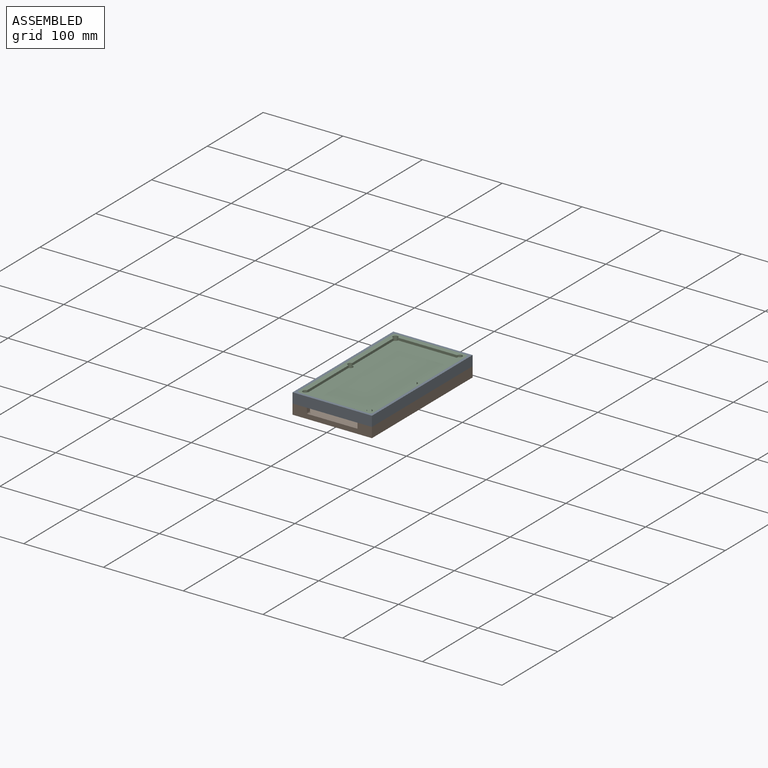
[diagram: assembled view]
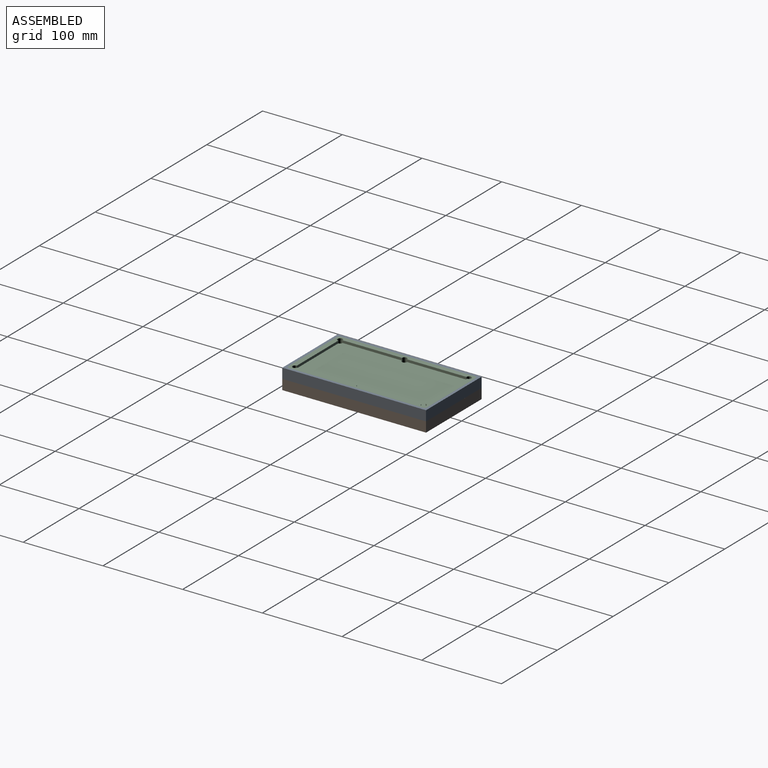
[diagram: assembled view, second angle]
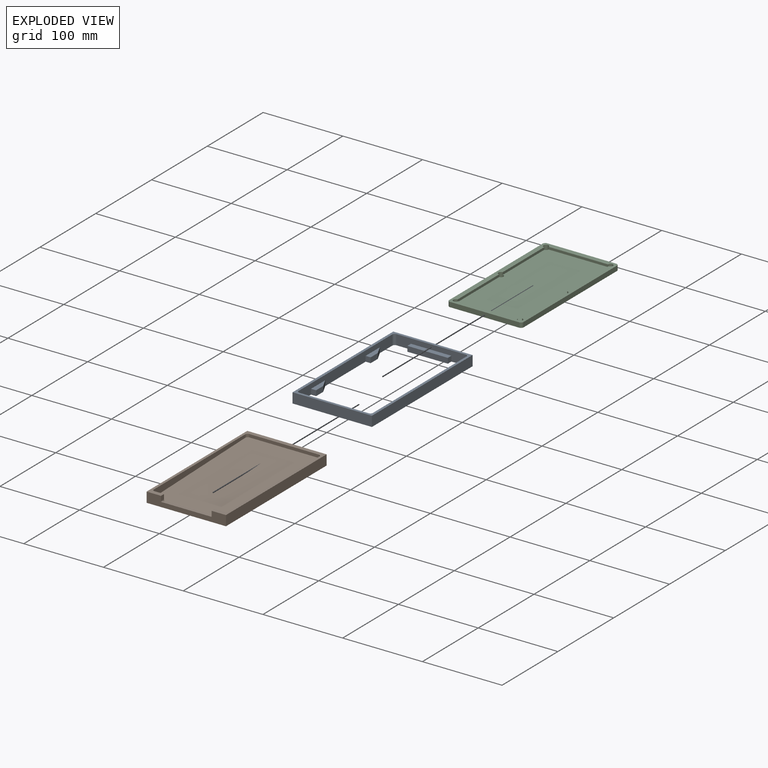
[diagram: exploded view]
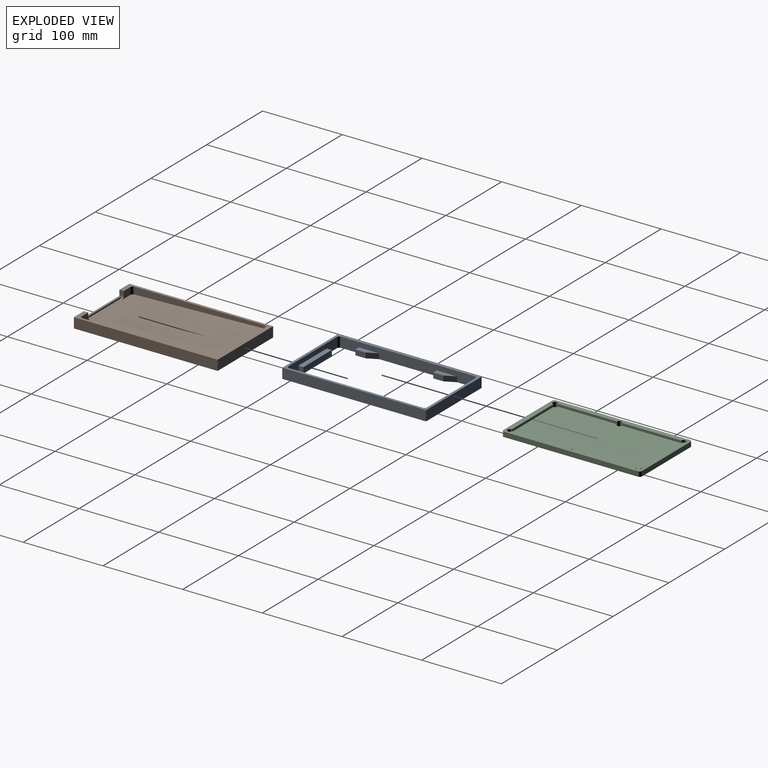
[diagram: exploded view, second angle]
ASSEMBLY  parts=3 mates=6
PART A: 38 faces, bbox 99.6x180.3x12.7 mm
  f0: plane 167.64x12.7mm, normal (-1,0,0), area 1793.5mm2, adj f1,f6,f10,f11,f22,f24,f25,f30
  f1: plane 180.34x99.57mm, normal (0,0,1), area 1745.7mm2, adj f0,f2,f3,f4,f5,f7,f8,f9
  f2: plane 99.57x12.7mm, normal (0,1,0), area 1264.5mm2, adj f1,f3,f5,f6
  f3: plane 180.34x12.7mm, normal (-1,0,0), area 2290.3mm2, adj f1,f2,f4,f6
  f4: plane 99.57x12.7mm, normal (0,-1,0), area 1264.5mm2, adj f1,f3,f5,f6
  f5: plane 180.34x12.7mm, normal (1,0,0), area 2290.3mm2, adj f1,f2,f4,f6
  f6: plane 180.34x99.57mm, normal (0,0,-1), area 2874.8mm2, adj f0,f2,f3,f4,f5,f7,f8,f9
  f7: plane 86.87x12.7mm, normal (0,1,0), area 767.7mm2, adj f1,f6,f11,f13,f34,f36,f37
  f8: plane 86.87x12.7mm, normal (0,-1,0), area 767.7mm2, adj f1,f6,f10,f12,f18,f20,f21
  f9: plane 167.64x12.7mm, normal (1,0,0), area 1793.5mm2, adj f1,f6,f12,f13,f15,f16,f17,f26
  f10: cylinder r=3.17mm len=12.7mm, axis (0,0,-1), area 63.3mm2, adj f0,f1,f6,f8
  f11: cylinder r=3.17mm len=12.7mm, axis (0,0,1), area 63.3mm2, adj f0,f1,f6,f7
  f12: cylinder r=3.17mm len=12.7mm, axis (0,0,1), area 63.3mm2, adj f1,f6,f8,f9
  f13: cylinder r=3.17mm len=12.7mm, axis (0,0,-1), area 63.3mm2, adj f1,f6,f7,f9
  f14: plane 12.7x6.6mm, normal (1,0,0), area 83.9mm2, adj f6,f15,f16,f17
  f15: plane 12.7x6.6mm, normal (0.89,0.45,0), area 93.8mm2, adj f6,f9,f14,f17
  f16: plane 6.6x6.35mm, normal (0,-1,0), area 41.9mm2, adj f6,f9,f14,f17
  f17: plane 25.4x6.35mm, normal (0,0,1), area 121mm2, adj f9,f14,f15,f16
  f18: plane 6.6x6.35mm, normal (-1,0,0), area 41.9mm2, adj f6,f8,f19,f21
  f19: plane 50.8x6.6mm, normal (0,-1,0), area 335.5mm2, adj f6,f18,f20,f21
  f20: plane 6.6x6.35mm, normal (1,0,0), area 41.9mm2, adj f6,f8,f19,f21
  f21: plane 50.8x6.35mm, normal (0,0,1), area 322.6mm2, adj f8,f18,f19,f20
  f22: plane 12.7x6.6mm, normal (-0.89,0.45,0), area 93.8mm2, adj f0,f6,f23,f25
  f23: plane 12.7x6.6mm, normal (-1,0,0), area 83.9mm2, adj f6,f22,f24,f25
  f24: plane 6.6x6.35mm, normal (0,-1,0), area 41.9mm2, adj f0,f6,f23,f25
  f25: plane 25.4x6.35mm, normal (0,0,1), area 121mm2, adj f0,f22,f23,f24
  f26: plane 6.6x6.35mm, normal (0,-1,0), area 41.9mm2, adj f6,f9,f27,f29
  f27: plane 12.7x6.6mm, normal (1,0,0), area 83.9mm2, adj f6,f26,f28,f29
  f28: plane 12.7x6.6mm, normal (0.89,0.45,0), area 93.8mm2, adj f6,f9,f27,f29
  f29: plane 25.4x6.35mm, normal (0,0,1), area 121mm2, adj f9,f26,f27,f28
  f30: plane 6.6x6.35mm, normal (0,-1,0), area 41.9mm2, adj f0,f6,f32,f33
  f31: plane 12.7x6.6mm, normal (-0.89,0.45,0), area 93.8mm2, adj f0,f6,f32,f33
  f32: plane 12.7x6.6mm, normal (-1,0,0), area 83.9mm2, adj f6,f30,f31,f33
  f33: plane 25.4x6.35mm, normal (0,0,1), area 121mm2, adj f0,f30,f31,f32
  f34: plane 6.6x6.35mm, normal (1,0,0), area 41.9mm2, adj f6,f7,f35,f37
  f35: plane 50.8x6.6mm, normal (0,1,0), area 335.5mm2, adj f6,f34,f36,f37
  f36: plane 6.6x6.35mm, normal (-1,0,0), area 41.9mm2, adj f6,f7,f35,f37
  f37: plane 50.8x6.35mm, normal (0,0,1), area 322.6mm2, adj f7,f34,f35,f36
PART B: 28 faces, bbox 100x180.7x13.1 mm
  f0: plane 180.34x99.57mm, normal (0,0,1), area 1796.3mm2, adj f3,f4,f6,f7,f8,f9,f18,f20
  f1: cylinder r=3.17mm len=5.46mm, axis (0,1,0), area 17.5mm2, adj f4,f5,f8,f12,f13,f18
  f2: cylinder r=3.17mm len=5.46mm, axis (0,-1,0), area 17.5mm2, adj f3,f5,f8,f12,f13,f20
  f3: plane 5.72x5.46mm, normal (1,0,0), area 31.2mm2, adj f0,f2,f8,f20
  f4: plane 5.72x5.46mm, normal (-1,0,0), area 31.2mm2, adj f0,f1,f8,f18
  f5: plane 57.15x5.84mm, normal (0,0,1), area 333.9mm2, adj f1,f2,f11,f12,f15,f17
  f6: plane 99.57x12.7mm, normal (0,1,0), area 1264.5mm2, adj f0,f7,f9,f10
  f7: plane 180.34x12.7mm, normal (-1,0,0), area 2290.3mm2, adj f0,f6,f8,f10
  f8: plane 99.57x12.7mm, normal (0,-1,0), area 829.2mm2, adj f0,f1,f2,f3,f4,f7,f9,f10
  f9: plane 180.34x12.7mm, normal (1,0,0), area 2290.3mm2, adj f0,f6,f8,f10
  f10: plane 180.34x99.57mm, normal (0,0,-1), area 17956.1mm2, adj f6,f7,f8,f9
  f11: cylinder r=1.78mm len=57.15mm, axis (-1,0,0), area 35.2mm2, adj f5,f14,f16,f19
  f12: plane 63.07x2.03mm, normal (0,1,0), area 124.9mm2, adj f1,f2,f5,f13
  f13: plane 63.07x2.54mm, normal (0,0,1), area 160.2mm2, adj f1,f2,f8,f12
  f14: bspline ~2.13x1.85mm, area 0.2mm2, adj f11,f15,f19
  f15: cylinder r=3.17mm len=2.92mm, axis (0,1,0), area 1.4mm2, adj f5,f14,f19
  f16: bspline ~2.13x1.85mm, area 0.2mm2, adj f11,f17,f19
  f17: cylinder r=3.17mm len=2.92mm, axis (0,-1,0), area 1.4mm2, adj f5,f16,f19
  f18: plane 14.86x8.89mm, normal (0,1,0), area 106mm2, adj f0,f1,f4,f19,f26
  f19: plane 170.12x93.61mm, normal (0,-0.03,1), area 15615mm2, adj f11,f14,f15,f16,f17,f18,f20,f21
  f20: plane 14.86x8.89mm, normal (0,1,0), area 106mm2, adj f0,f2,f3,f19,f24
  f21: plane 86.87x3.81mm, normal (0,-1,0), area 331mm2, adj f0,f19,f25,f27
  f22: plane 163.38x8.8mm, normal (-1,0,0), area 1037.4mm2, adj f0,f19,f26,f27
  f23: plane 163.38x8.8mm, normal (1,0,0), area 1037.4mm2, adj f0,f19,f24,f25
  f24: cylinder r=3.17mm len=8.89mm, axis (0,0,1), area 44.1mm2, adj f0,f19,f20,f23
  f25: cylinder r=3.17mm len=3.91mm, axis (0,0,-1), area 19.2mm2, adj f0,f19,f21,f23
  f26: cylinder r=3.17mm len=8.89mm, axis (0,0,-1), area 44.1mm2, adj f0,f18,f19,f22
  f27: cylinder r=3.17mm len=3.91mm, axis (0,0,1), area 19.2mm2, adj f0,f19,f21,f22
PART C: 23 faces, bbox 93.2x174x6.1 mm
  f0: plane 74.42x3.05mm, normal (1,0,0), area 226.8mm2, adj f2,f12,f14,f18
  f1: plane 74.42x3.05mm, normal (-1,0,0), area 226.8mm2, adj f2,f12,f13,f15
  f2: plane 173.99x93.22mm, normal (0,0,1), area 3035.4mm2, adj f0,f1,f3,f4,f5,f6,f8,f9
  f3: plane 167.64x6.1mm, normal (1,0,0), area 1021.9mm2, adj f2,f7,f19,f22
  f4: plane 86.87x6.1mm, normal (0,1,0), area 529.5mm2, adj f2,f7,f19,f20
  f5: plane 167.64x6.1mm, normal (-1,0,0), area 1021.9mm2, adj f2,f7,f20,f21
  f6: plane 86.87x6.1mm, normal (0,-1,0), area 529.5mm2, adj f2,f7,f21,f22
  f7: plane 173.99x93.22mm, normal (0,0,-1), area 16020.3mm2, adj f3,f4,f5,f6,f13,f14,f15,f16
  f8: plane 74.42x3.05mm, normal (0,-1,0), area 226.8mm2, adj f2,f12,f16,f17
  f9: plane 74.42x3.05mm, normal (1,0,0), area 226.8mm2, adj f2,f12,f17,f18
  f10: plane 74.42x3.05mm, normal (0,1,0), area 226.8mm2, adj f2,f12,f14,f15
  f11: plane 74.42x3.05mm, normal (-1,0,0), area 226.8mm2, adj f2,f12,f13,f16
  f12: plane 161.54x80.77mm, normal (0,0,1), area 12984.9mm2, adj f0,f1,f8,f9,f10,f11,f13,f14
  f13: cylinder r=3.17mm len=6.35mm, axis (0,0,1), area 91.2mm2, adj f1,f2,f7,f11,f12
  f14: cylinder r=3.17mm len=6.35mm, axis (0,0,1), area 106.4mm2, adj f0,f2,f7,f10,f12
  f15: cylinder r=3.17mm len=6.35mm, axis (0,0,1), area 106.4mm2, adj f1,f2,f7,f10,f12
  f16: cylinder r=3.17mm len=6.35mm, axis (0,0,1), area 106.4mm2, adj f2,f7,f8,f11,f12
  f17: cylinder r=3.17mm len=6.35mm, axis (0,0,1), area 106.4mm2, adj f2,f7,f8,f9,f12
  f18: cylinder r=3.17mm len=6.35mm, axis (0,0,1), area 91.2mm2, adj f0,f2,f7,f9,f12
  f19: cylinder r=3.17mm len=6.1mm, axis (0,0,1), area 30.4mm2, adj f2,f3,f4,f7
  f20: cylinder r=3.17mm len=6.1mm, axis (0,0,-1), area 30.4mm2, adj f2,f4,f5,f7
  f21: cylinder r=3.17mm len=6.1mm, axis (0,0,1), area 30.4mm2, adj f2,f5,f6,f7
  f22: cylinder r=3.17mm len=6.1mm, axis (0,0,-1), area 30.4mm2, adj f2,f3,f6,f7
PLACE A at identity fixed
PLACE B t=(0,0,-12.7)mm
PLACE C t=(0,0,6.6)mm
MATE planar B.f8 <-> A.f4  axis (0,-1,0) through (0,-90.17,-7.88)mm
MATE planar B.f0 <-> A.f6  axis (0,0,1) through (0,15.52,0)mm
MATE planar C.f6 <-> A.f7  axis (0,-1,0) through (0,-87,9.65)mm
MATE planar C.f3 <-> A.f0  axis (1,0,0) through (46.61,0,9.65)mm
MATE planar B.f9 <-> A.f5  axis (1,0,0) through (49.78,0,-6.35)mm
MATE planar C.f2 <-> A.f1  axis (0,0,1) through (0,-87,12.7)mm
